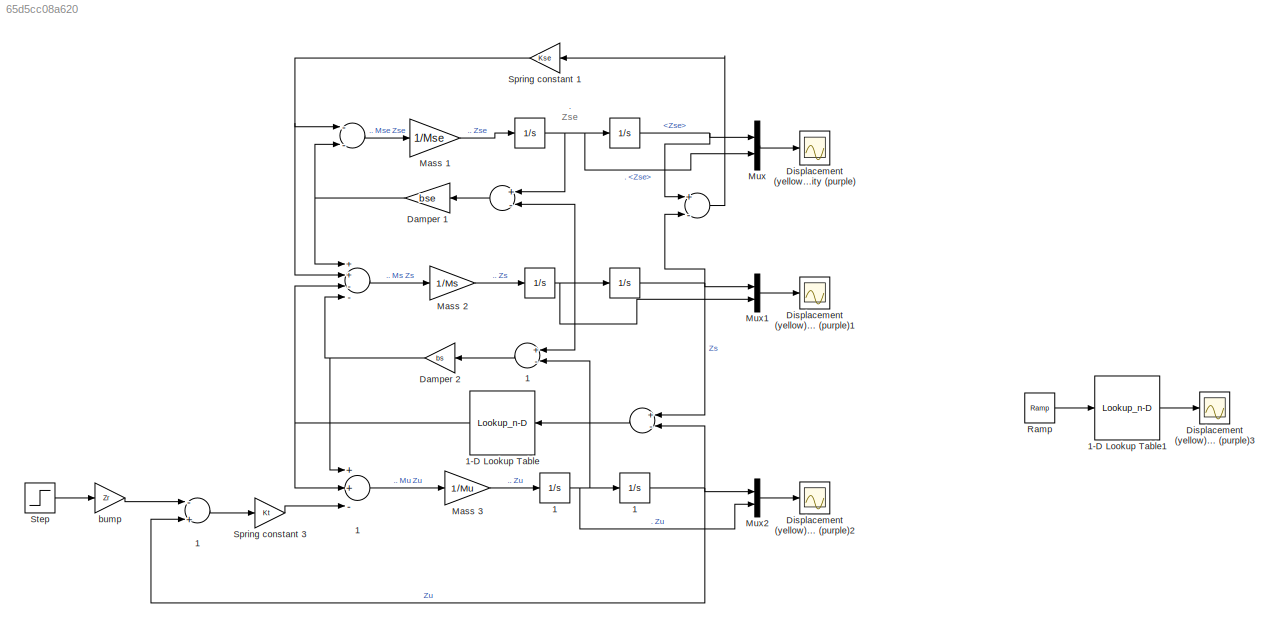
MODEL slx_65d5cc08a620
KIND model
CONFIG AbsTol = auto
CONFIG EnableMultiTasking = off
CONFIG FixedStep = 0.00000001
CONFIG MaxStep = 0.0001
CONFIG MinStep = auto
CONFIG RelTol = 1e-3
CONFIG SampleTimeConstraint = Unconstrained
CONFIG Solver = VariableStepAuto
CONFIG SolverName = VariableStepAuto
CONFIG StartTime = 0.0
CONFIG StopTime = 10.0
BLOCK [Integrator]  
  Ports = [1, 1]
BLOCK [Sum]   
  InputSameDT = off
  Inputs = +-
  OutDataTypeStr = Inherit: Inherit via internal rule
  Ports = [2, 1]
  SaturateOnIntegerOverflow = off
BLOCK [Integrator]      
  Ports = [1, 1]
BLOCK [Sum]       
  InputSameDT = off
  Inputs = ++--
  OutDataTypeStr = Inherit: Inherit via internal rule
  Ports = [4, 1]
  SaturateOnIntegerOverflow = off
BLOCK [Sum]        
  InputSameDT = off
  Inputs = --
  OutDataTypeStr = Inherit: Inherit via internal rule
  Ports = [2, 1]
  SaturateOnIntegerOverflow = off
BLOCK [Sum]         
  InputSameDT = off
  Inputs = +-
  OutDataTypeStr = Inherit: Inherit via internal rule
  Ports = [2, 1]
  SaturateOnIntegerOverflow = off
BLOCK [Integrator]          
  Ports = [1, 1]
BLOCK [Integrator]           
  Ports = [1, 1]
BLOCK [Sum]              
  InputSameDT = off
  Inputs = +-
  OutDataTypeStr = Inherit: Inherit via internal rule
  Ports = [2, 1]
  SaturateOnIntegerOverflow = off
BLOCK [Sum]              1
  InputSameDT = off
  Inputs = +-
  OutDataTypeStr = Inherit: Inherit via internal rule
  Ports = [2, 1]
  SaturateOnIntegerOverflow = off
BLOCK [Integrator]           1
  Ports = [1, 1]
BLOCK [Integrator]          1
  Ports = [1, 1]
BLOCK [Sum]        1
  InputSameDT = off
  Inputs = -+
  OutDataTypeStr = Inherit: Inherit via internal rule
  Ports = [2, 1]
  SaturateOnIntegerOverflow = off
BLOCK [Sum]       1
  InputSameDT = off
  Inputs = ++-
  OutDataTypeStr = Inherit: Inherit via internal rule
  Ports = [3, 1]
  SaturateOnIntegerOverflow = off
BLOCK [Lookup_n-D] 1-D Lookup Table
  BreakpointsForDimension1 = p1_150_p2_30v(:,1)
  DiagnosticForOutOfRangeInput = Warning
  InternalRulePriority = Speed
  LookupTableObject = p1_150_p2_30v
  NumberOfTableDimensions = 1
  Ports = [1, 1]
  RndMeth = Simplest
  Table = p1_150_p2_30v(:,2)
BLOCK [Lookup_n-D] 1-D Lookup Table1
  BreakpointsForDimension1 = p1_150_p2_30v(:,1)'
  InternalRulePriority = Speed
  LookupTableObject = p1_150_p2_30v
  NumberOfTableDimensions = 1
  Ports = [1, 1]
  RndMeth = Simplest
  Table = p1_150_p2_30v(:,2)'
BLOCK [Gain] Damper 1
  Gain = bse
  OutDataTypeStr = Inherit: Inherit via internal rule
  ParamDataTypeStr = Inherit: Inherit via internal rule
  SaturateOnIntegerOverflow = off
BLOCK [Gain] Damper 2
  Gain = bs
  OutDataTypeStr = Inherit: Inherit via internal rule
  ParamDataTypeStr = Inherit: Inherit via internal rule
  SaturateOnIntegerOverflow = off
BLOCK [Scope] Displacement (yellow) Velocity (purple)
  Floating = off
  NumInputPorts = 1
  Ports = [1]
  ScopeSpecificationString = Simulink.scopes.TimeScopeBlockCfg('CurrentConfiguration', extmgr.ConfigurationSet(extmgr.Configuration('Core','General UI',true),extmgr.Configuration('Core','Source UI',true),extmgr.Configuration('Sources','WiredSimulink',true,'DataLoggingVariableName','ScopeData1','DataLoggingSaveFormat','StructureWithTime','DataLoggingLimitDataPoints',true,'DataLoggingDecimation','1','DataLoggingDecimateData',tr...<+1554ch>
BLOCK [Scope] Displacement (yellow) Velocity (purple)1
  Floating = off
  NumInputPorts = 1
  Ports = [1]
  ScopeSpecificationString = Simulink.scopes.TimeScopeBlockCfg('CurrentConfiguration', extmgr.ConfigurationSet(extmgr.Configuration('Core','General UI',true),extmgr.Configuration('Core','Source UI',true),extmgr.Configuration('Sources','WiredSimulink',true,'DataLoggingSaveFormat','StructureWithTime','DataLoggingLimitDataPoints',true,'DataLoggingDecimation','1','DataLoggingDecimateData',true,'DataLoggingVariableName','ScopeData...<+1688ch>
BLOCK [Scope] Displacement (yellow) Velocity (purple)2
  Floating = off
  NumInputPorts = 1
  Ports = [1]
  ScopeSpecificationString = Simulink.scopes.TimeScopeBlockCfg('CurrentConfiguration', extmgr.ConfigurationSet(extmgr.Configuration('Core','General UI',true),extmgr.Configuration('Core','Source UI',true),extmgr.Configuration('Sources','WiredSimulink',true,'DataLoggingSaveFormat','StructureWithTime','DataLoggingLimitDataPoints',true,'DataLoggingDecimation','1','DataLoggingDecimateData',true),extmgr.Configuration('Visuals','Tim...<+1648ch>
BLOCK [Scope] Displacement (yellow) Velocity (purple)3
  Floating = off
  NumInputPorts = 1
  Ports = [1]
  ScopeSpecificationString = Simulink.scopes.TimeScopeBlockCfg('CurrentConfiguration', extmgr.ConfigurationSet(extmgr.Configuration('Core','General UI',true),extmgr.Configuration('Core','Source UI',true),extmgr.Configuration('Sources','WiredSimulink',true,'DataLoggingSaveFormat','StructureWithTime','DataLoggingLimitDataPoints',true,'DataLoggingDecimation','1','DataLoggingDecimateData',true,'DataLoggingVariableName','ScopeData...<+1802ch>
BLOCK [Gain] Mass 1
  Gain = 1/Mse
  OutDataTypeStr = Inherit: Inherit via internal rule
  ParamDataTypeStr = Inherit: Inherit via internal rule
  SaturateOnIntegerOverflow = off
BLOCK [Gain] Mass 2
  Gain = 1/Ms
  OutDataTypeStr = Inherit: Inherit via internal rule
  ParamDataTypeStr = Inherit: Inherit via internal rule
  SaturateOnIntegerOverflow = off
BLOCK [Gain] Mass 3
  Gain = 1/Mu
  OutDataTypeStr = Inherit: Inherit via internal rule
  ParamDataTypeStr = Inherit: Inherit via internal rule
  SaturateOnIntegerOverflow = off
BLOCK [Mux] Mux
  DisplayOption = bar
  Inputs = 2
  Ports = [2, 1]
BLOCK [Mux] Mux1
  DisplayOption = bar
  Inputs = 2
  Ports = [2, 1]
BLOCK [Mux] Mux2
  DisplayOption = bar
  Inputs = 2
  Ports = [2, 1]
BLOCK [Reference] Ramp  REF=simulink/Sources/Ramp
  Ports = [0, 1]
  SourceBlock = simulink/Sources/Ramp
  SourceProductBaseCode = SL
  SourceProductName = Simulink
  SourceType = Ramp
BLOCK [Gain] Spring constant 1
  Gain = Kse
  OutDataTypeStr = Inherit: Inherit via internal rule
  ParamDataTypeStr = Inherit: Inherit via internal rule
  SaturateOnIntegerOverflow = off
BLOCK [Gain] Spring constant 3
  Gain = Kt
  OutDataTypeStr = Inherit: Inherit via internal rule
  ParamDataTypeStr = Inherit: Inherit via internal rule
  SaturateOnIntegerOverflow = off
BLOCK [Step] Step
  SampleTime = 0
BLOCK [Gain] bump
  Gain = Zr
  OutDataTypeStr = Inherit: Inherit via internal rule
  ParamDataTypeStr = Inherit: Inherit via internal rule
  SaturateOnIntegerOverflow = off
ANNOTATION (root): . Zse
LINE              1:1 -> Damper 2:1
LINE              :1 -> 1-D Lookup Table:1
NET           1:1 ->              :2,        1:2, Mux2:1
NET           :1 ->              :1,   :2, Mux1:1
NET          1:1 ->              1:2,           1:1, Mux2:2
NET          :1 ->              1:1,           :1,         :2, Mux1:2
LINE         :1 -> Damper 1:1
LINE        1:1 -> Spring constant 3:1
LINE        :1 -> Mass 1:1
LINE       1:1 -> Mass 3:1
LINE       :1 -> Mass 2:1
NET      :1 ->   :1, Mux:1
LINE   :1 -> Spring constant 1:1
NET  :1 ->         :1,      :1, Mux:2
LINE 1-D Lookup Table1:1 -> Displacement (yellow) Velocity (purple)3:1
NET 1-D Lookup Table:1 ->       1:2,       :3
NET Damper 1:1 ->        :2,       :1
NET Damper 2:1 ->       1:1,       :4
LINE Mass 1:1 ->  :1
LINE Mass 2:1 ->          :1
LINE Mass 3:1 ->          1:1
LINE Mux1:1 -> Displacement (yellow) Velocity (purple)1:1
LINE Mux2:1 -> Displacement (yellow) Velocity (purple)2:1
LINE Mux:1 -> Displacement (yellow) Velocity (purple):1
LINE Ramp:1 -> 1-D Lookup Table1:1
NET Spring constant 1:1 ->        :1,       :2
LINE Spring constant 3:1 ->       1:3
LINE Step:1 -> bump:1
LINE bump:1 ->        1:1
note: NET lines group one-source signal fan-out (src -> all destinations, sorted); 1:1 wires keep LINE
